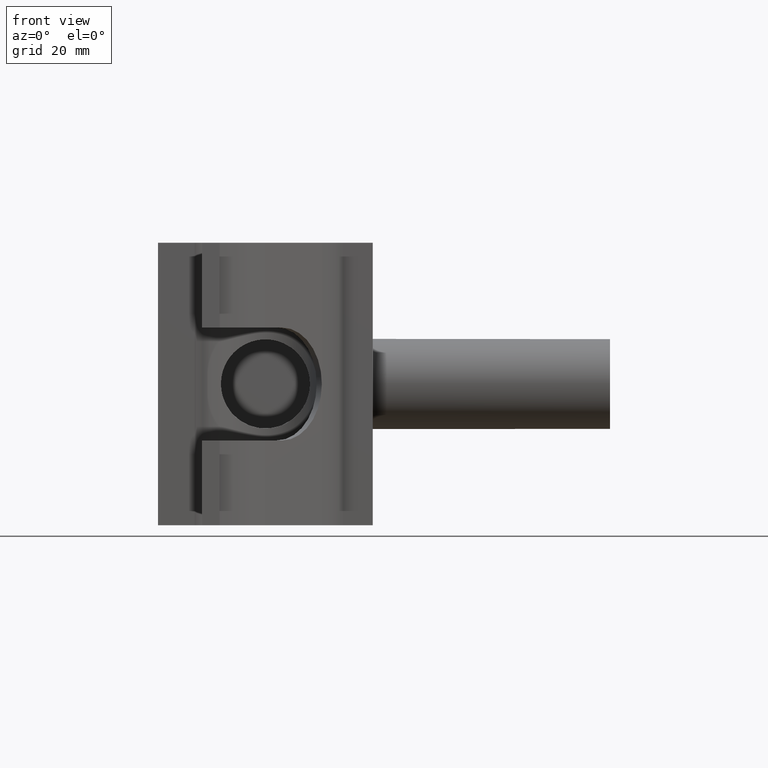
[diagram: clean part render]
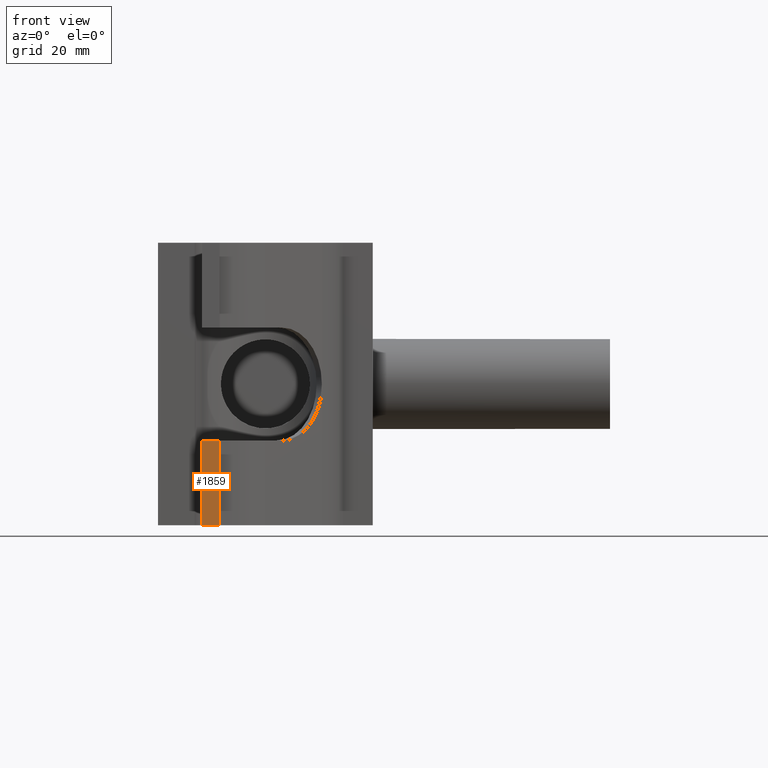
[diagram: same view with one face highlighted and labeled with its STEP entity id]
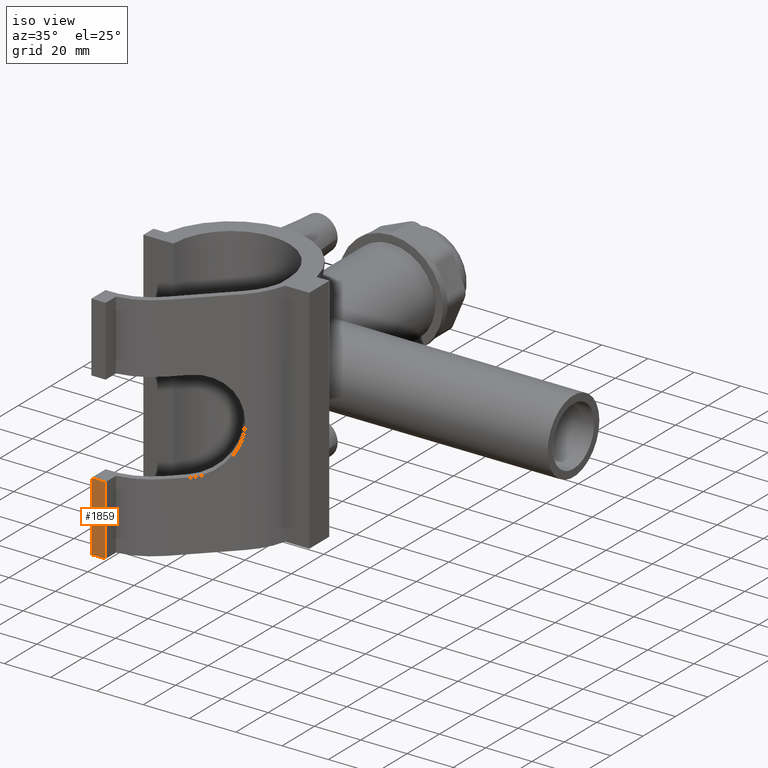
[diagram: same view with one face highlighted and labeled with its STEP entity id]
A machine part, front view. The second image highlights one B-rep face of the part: STEP entity #1859.
A second angle (iso view) of the same face is appended — the face is thin or edge-on in the first view.
In plain terms, the highlighted planar face has unit normal (0, -1, 0).
Its self-contained STEP definition (entity closure, byte-faithful):
#296=FACE_OUTER_BOUND('',#430,.T.);
#430=EDGE_LOOP('',(#1608,#1609,#1610,#1611));
#549=LINE('',#3594,#694);
#560=LINE('',#3628,#705);
#563=LINE('',#3635,#708);
#564=LINE('',#3636,#709);
#694=VECTOR('',#2508,6.19999999999999);
#705=VECTOR('',#2543,30.);
#708=VECTOR('',#2550,6.19999999999999);
#709=VECTOR('',#2551,30.);
#880=VERTEX_POINT('',#3591);
#881=VERTEX_POINT('',#3593);
#892=VERTEX_POINT('',#3626);
#894=VERTEX_POINT('',#3634);
#1119=EDGE_CURVE('',#881,#880,#549,.T.);
#1137=EDGE_CURVE('',#880,#892,#560,.T.);
#1140=EDGE_CURVE('',#894,#892,#563,.T.);
#1141=EDGE_CURVE('',#881,#894,#564,.T.);
#1608=ORIENTED_EDGE('',*,*,#1119,.T.);
#1609=ORIENTED_EDGE('',*,*,#1137,.T.);
#1610=ORIENTED_EDGE('',*,*,#1140,.F.);
#1611=ORIENTED_EDGE('',*,*,#1141,.F.);
#1752=PLANE('',#2055);
#1859=ADVANCED_FACE('',(#296),#1752,.T.);
#2055=AXIS2_PLACEMENT_3D('',#3633,#2548,#2549);
#2508=DIRECTION('',(-1.,0.,7.06541607246642E-16));
#2543=DIRECTION('',(0.,0.,-1.));
#2548=DIRECTION('center_axis',(0.,-1.,0.));
#2549=DIRECTION('ref_axis',(-1.,0.,0.));
#2550=DIRECTION('',(-1.,0.,0.));
#2551=DIRECTION('',(0.,0.,-1.));
#3591=CARTESIAN_POINT('',(-22.3999374999305,-54.3691318287677,-20.));
#3593=CARTESIAN_POINT('',(-16.1999374999305,-54.3691318287677,-20.));
#3594=CARTESIAN_POINT('',(-6.09290247239106,-54.3691318287677,-20.));
#3626=CARTESIAN_POINT('',(-22.3999374999305,-54.3691318287677,-50.));
#3628=CARTESIAN_POINT('',(-22.3999374999305,-54.3691318287677,50.));
#3633=CARTESIAN_POINT('Origin',(-16.1999374999305,-54.3691318287677,50.));
#3634=CARTESIAN_POINT('',(-16.1999374999305,-54.3691318287677,-50.));
#3635=CARTESIAN_POINT('',(-4.19995312494785,-54.3691318287677,-50.));
#3636=CARTESIAN_POINT('',(-16.1999374999305,-54.3691318287677,50.));